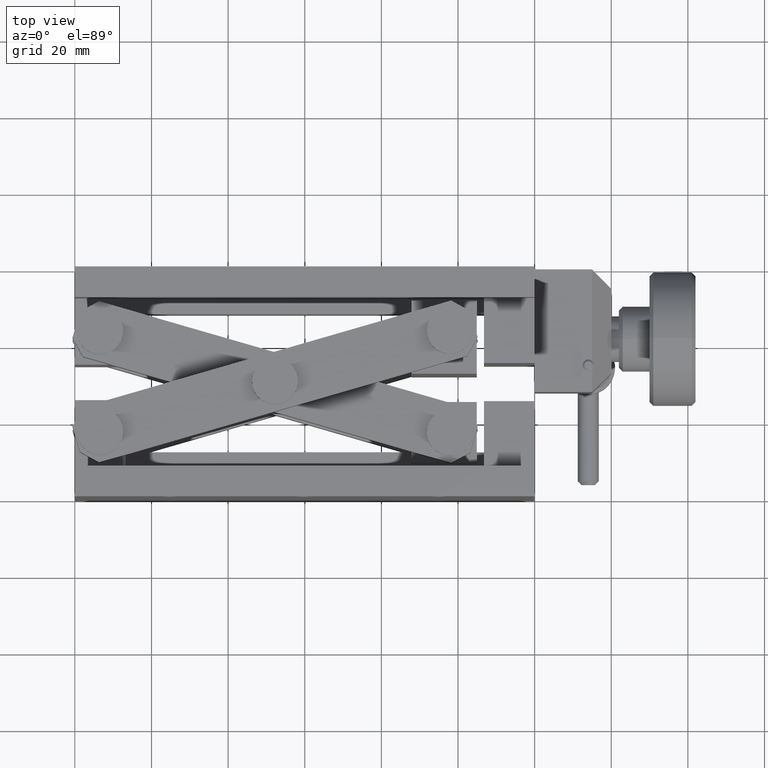
[diagram: clean part render]
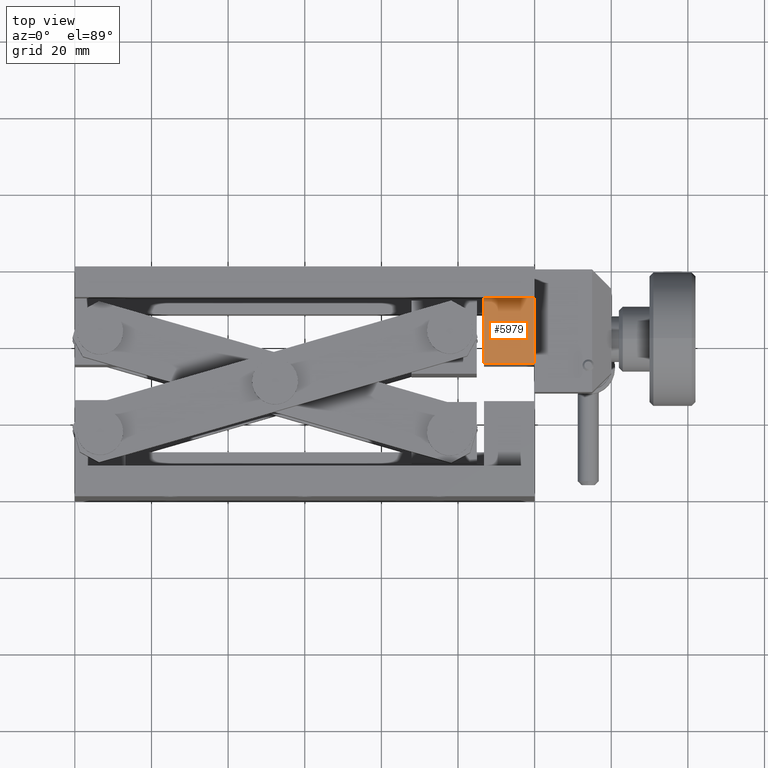
[diagram: same view with one face highlighted and labeled with its STEP entity id]
A machine part, top view. The second image highlights one B-rep face of the part: STEP entity #5979.
In plain terms, the highlighted planar face has unit normal (0, 0, 1).
Its self-contained STEP definition (entity closure, byte-faithful):
#369 = PLANE ( 'NONE',  #2957 ) ;
#679 = DIRECTION ( 'NONE',  ( 1.000000000000000000, 0.000000000000000000, 0.000000000000000000 ) ) ;
#949 = CARTESIAN_POINT ( 'NONE',  ( 106.8000000000000114, 59.99992954716100257, 28.00000000000000000 ) ) ;
#958 = CARTESIAN_POINT ( 'NONE',  ( 120.0000000000000000, 34.99992954716100257, 28.00000000000000000 ) ) ;
#1122 = DIRECTION ( 'NONE',  ( 0.000000000000000000, 1.000000000000000000, 0.000000000000000000 ) ) ;
#1412 = VECTOR ( 'NONE', #1122, 1000.000000000000000 ) ;
#1455 = LINE ( 'NONE', #2050, #4750 ) ;
#1716 = EDGE_CURVE ( 'NONE', #8558, #1979, #1455, .T. ) ;
#1829 = DIRECTION ( 'NONE',  ( 1.000000000000000000, 0.000000000000000000, 0.000000000000000000 ) ) ;
#1888 = CARTESIAN_POINT ( 'NONE',  ( 120.0000000000000000, 34.99992954716100257, 28.00000000000000000 ) ) ;
#1979 = VERTEX_POINT ( 'NONE', #958 ) ;
#2050 = CARTESIAN_POINT ( 'NONE',  ( 106.8000000000000114, 34.99992954716100257, 28.00000000000000000 ) ) ;
#2420 = FACE_OUTER_BOUND ( 'NONE', #7439, .T. ) ;
#2495 = ORIENTED_EDGE ( 'NONE', *, *, #1716, .T. ) ;
#2508 = CARTESIAN_POINT ( 'NONE',  ( 0.000000000000000000, 1.499929547160999910, 28.00000000000000000 ) ) ;
#2826 = ORIENTED_EDGE ( 'NONE', *, *, #3497, .F. ) ;
#2957 = AXIS2_PLACEMENT_3D ( 'NONE', #2508, #8121, #1829 ) ;
#3134 = CARTESIAN_POINT ( 'NONE',  ( 106.8000000000000114, 51.99992954716100257, 28.00000000000000000 ) ) ;
#3249 = VECTOR ( 'NONE', #7362, 1000.000000000000000 ) ;
#3315 = LINE ( 'NONE', #1888, #1412 ) ;
#3423 = LINE ( 'NONE', #6229, #7112 ) ;
#3497 = EDGE_CURVE ( 'NONE', #5569, #3988, #3423, .T. ) ;
#3887 = EDGE_CURVE ( 'NONE', #1979, #3988, #3315, .T. ) ;
#3988 = VERTEX_POINT ( 'NONE', #4101 ) ;
#4101 = CARTESIAN_POINT ( 'NONE',  ( 120.0000000000000000, 51.99992954716100257, 28.00000000000000000 ) ) ;
#4569 = LINE ( 'NONE', #949, #3249 ) ;
#4750 = VECTOR ( 'NONE', #4857, 1000.000000000000000 ) ;
#4857 = DIRECTION ( 'NONE',  ( 1.000000000000000000, 0.000000000000000000, 0.000000000000000000 ) ) ;
#4957 = CARTESIAN_POINT ( 'NONE',  ( 106.8000000000000114, 34.99992954716100257, 28.00000000000000000 ) ) ;
#5149 = EDGE_CURVE ( 'NONE', #5569, #8558, #4569, .T. ) ;
#5569 = VERTEX_POINT ( 'NONE', #3134 ) ;
#5979 = ADVANCED_FACE ( 'NONE', ( #2420 ), #369, .T. ) ;
#6229 = CARTESIAN_POINT ( 'NONE',  ( 0.000000000000000000, 51.99992954716100257, 28.00000000000000000 ) ) ;
#6562 = ORIENTED_EDGE ( 'NONE', *, *, #5149, .T. ) ;
#7112 = VECTOR ( 'NONE', #679, 1000.000000000000000 ) ;
#7362 = DIRECTION ( 'NONE',  ( 0.000000000000000000, -1.000000000000000000, 0.000000000000000000 ) ) ;
#7439 = EDGE_LOOP ( 'NONE', ( #2826, #6562, #2495, #7760 ) ) ;
#7760 = ORIENTED_EDGE ( 'NONE', *, *, #3887, .T. ) ;
#8121 = DIRECTION ( 'NONE',  ( 0.000000000000000000, 0.000000000000000000, 1.000000000000000000 ) ) ;
#8558 = VERTEX_POINT ( 'NONE', #4957 ) ;